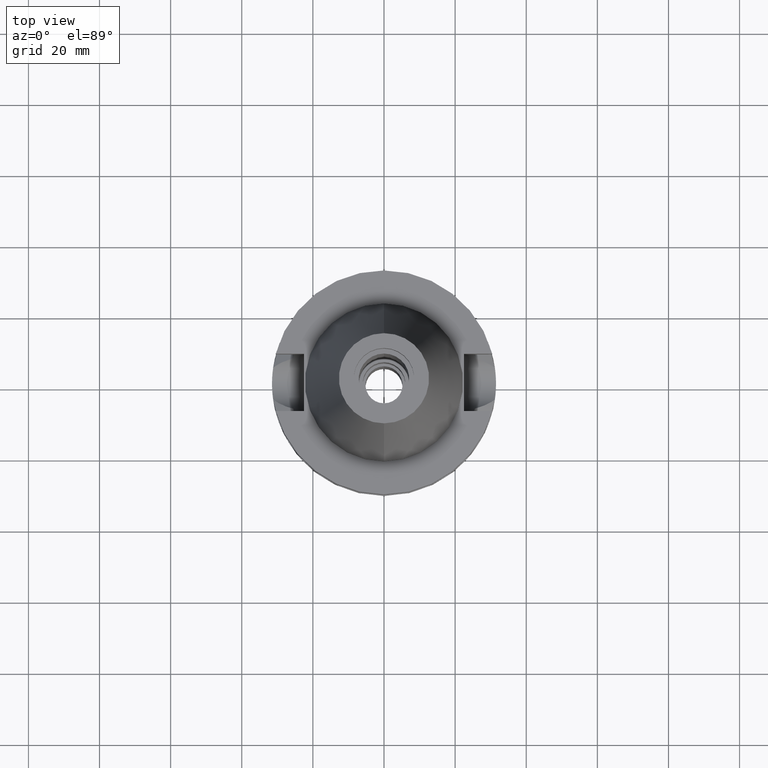
[diagram: clean part render]
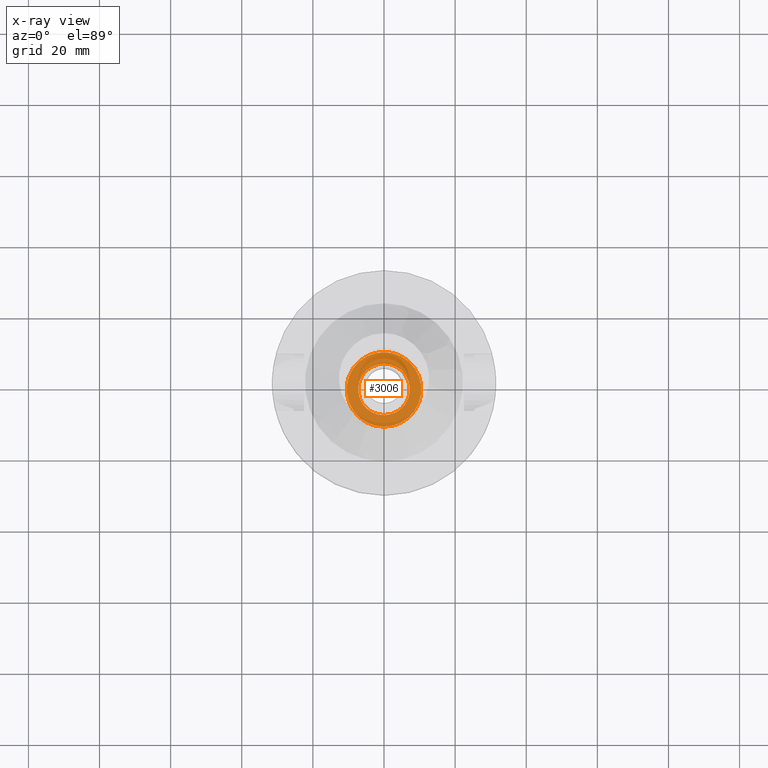
[diagram: x-ray — body ghosted, one internal face saturated and labeled with its STEP entity id]
A machine part, top view, then the same camera in x-ray: the body is ghosted and one INTERNAL B-rep face — a face not visible from any outside direction — is saturated and labeled: STEP entity #3006.
In plain terms, the highlighted planar face has unit normal (0, 0, -1).
Its self-contained STEP definition (entity closure, byte-faithful):
#5 = DIRECTION ( 'NONE',  ( 0.0000000000000000000, -1.000000000000000000, 0.0000000000000000000 ) ) ;
#120 = AXIS2_PLACEMENT_3D ( 'NONE', #3289, #3012, #2203 ) ;
#143 = CARTESIAN_POINT ( 'NONE',  ( 0.0000000000000000000, 10.50000000000000000, -8.200000000000001066 ) ) ;
#317 = ORIENTED_EDGE ( 'NONE', *, *, #3034, .F. ) ;
#366 = CIRCLE ( 'NONE', #1633, 7.250000000000000000 ) ;
#478 = AXIS2_PLACEMENT_3D ( 'NONE', #3368, #2571, #5 ) ;
#550 = CARTESIAN_POINT ( 'NONE',  ( 0.0000000000000000000, 0.0000000000000000000, -8.200000000000001066 ) ) ;
#626 = DIRECTION ( 'NONE',  ( 0.0000000000000000000, 0.0000000000000000000, 1.000000000000000000 ) ) ;
#778 = AXIS2_PLACEMENT_3D ( 'NONE', #2907, #2665, #2609 ) ;
#788 = VERTEX_POINT ( 'NONE', #1269 ) ;
#858 = CARTESIAN_POINT ( 'NONE',  ( 0.0000000000000000000, -10.50000000000000000, -8.200000000000001066 ) ) ;
#966 = VERTEX_POINT ( 'NONE', #858 ) ;
#1069 = CIRCLE ( 'NONE', #120, 10.50000000000000000 ) ;
#1096 = VERTEX_POINT ( 'NONE', #1721 ) ;
#1118 = FACE_OUTER_BOUND ( 'NONE', #1286, .T. ) ;
#1269 = CARTESIAN_POINT ( 'NONE',  ( 0.0000000000000000000, 7.250000000000000000, -8.200000000000001066 ) ) ;
#1286 = EDGE_LOOP ( 'NONE', ( #3208, #2144 ) ) ;
#1346 = EDGE_LOOP ( 'NONE', ( #317, #3087 ) ) ;
#1440 = DIRECTION ( 'NONE',  ( 0.0000000000000000000, 0.0000000000000000000, -1.000000000000000000 ) ) ;
#1633 = AXIS2_PLACEMENT_3D ( 'NONE', #2279, #626, #3086 ) ;
#1721 = CARTESIAN_POINT ( 'NONE',  ( 0.0000000000000000000, -7.250000000000000000, -8.200000000000001066 ) ) ;
#1993 = FACE_BOUND ( 'NONE', #1346, .T. ) ;
#2144 = ORIENTED_EDGE ( 'NONE', *, *, #2447, .F. ) ;
#2203 = DIRECTION ( 'NONE',  ( 0.0000000000000000000, -1.000000000000000000, 0.0000000000000000000 ) ) ;
#2240 = VERTEX_POINT ( 'NONE', #143 ) ;
#2279 = CARTESIAN_POINT ( 'NONE',  ( 0.0000000000000000000, 0.0000000000000000000, -8.200000000000001066 ) ) ;
#2447 = EDGE_CURVE ( 'NONE', #966, #2240, #1069, .T. ) ;
#2571 = DIRECTION ( 'NONE',  ( 0.0000000000000000000, 0.0000000000000000000, 1.000000000000000000 ) ) ;
#2609 = DIRECTION ( 'NONE',  ( 0.0000000000000000000, 1.000000000000000000, 0.0000000000000000000 ) ) ;
#2665 = DIRECTION ( 'NONE',  ( 0.0000000000000000000, 0.0000000000000000000, -1.000000000000000000 ) ) ;
#2827 = AXIS2_PLACEMENT_3D ( 'NONE', #550, #1440, #3127 ) ;
#2907 = CARTESIAN_POINT ( 'NONE',  ( 0.0000000000000000000, 0.0000000000000000000, -8.200000000000001066 ) ) ;
#2998 = CIRCLE ( 'NONE', #478, 7.250000000000000000 ) ;
#3006 = ADVANCED_FACE ( 'NONE', ( #1118, #1993 ), #3148, .F. ) ;
#3012 = DIRECTION ( 'NONE',  ( 0.0000000000000000000, 0.0000000000000000000, -1.000000000000000000 ) ) ;
#3034 = EDGE_CURVE ( 'NONE', #788, #1096, #366, .T. ) ;
#3054 = EDGE_CURVE ( 'NONE', #1096, #788, #2998, .T. ) ;
#3086 = DIRECTION ( 'NONE',  ( 0.0000000000000000000, 1.000000000000000000, 0.0000000000000000000 ) ) ;
#3087 = ORIENTED_EDGE ( 'NONE', *, *, #3054, .F. ) ;
#3127 = DIRECTION ( 'NONE',  ( 0.0000000000000000000, -1.000000000000000000, 0.0000000000000000000 ) ) ;
#3148 = PLANE ( 'NONE',  #2827 ) ;
#3187 = CIRCLE ( 'NONE', #778, 10.50000000000000000 ) ;
#3208 = ORIENTED_EDGE ( 'NONE', *, *, #3243, .F. ) ;
#3243 = EDGE_CURVE ( 'NONE', #2240, #966, #3187, .T. ) ;
#3289 = CARTESIAN_POINT ( 'NONE',  ( 0.0000000000000000000, 0.0000000000000000000, -8.200000000000001066 ) ) ;
#3368 = CARTESIAN_POINT ( 'NONE',  ( 0.0000000000000000000, 0.0000000000000000000, -8.200000000000001066 ) ) ;